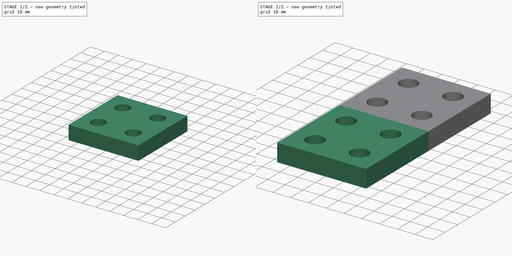
[diagram: build sequence overview — one tinted view per stage of 2, left to right]
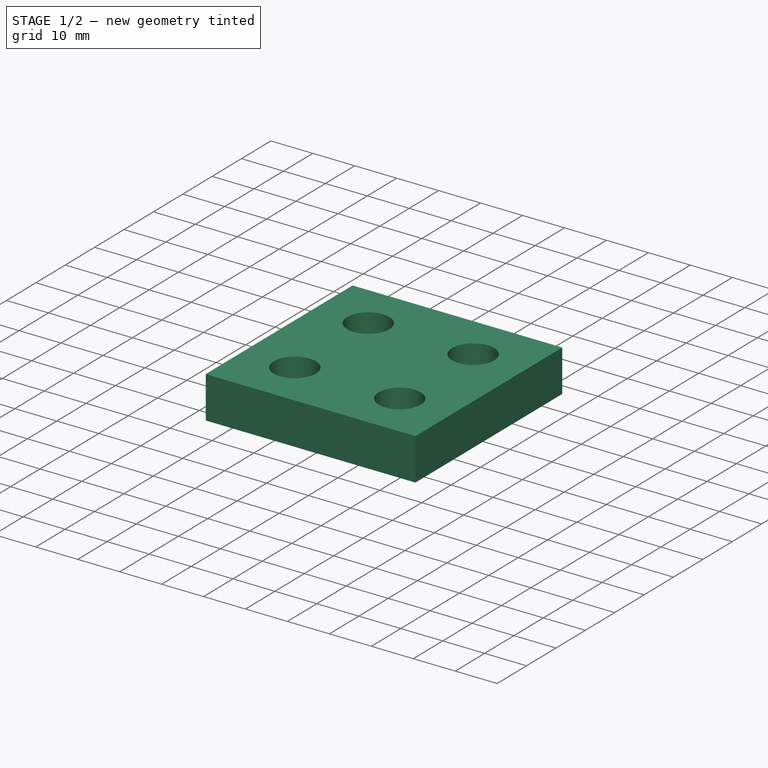
[diagram: stage 1 of 2 — iso view after this stage's code; geometry added in this stage tinted green]
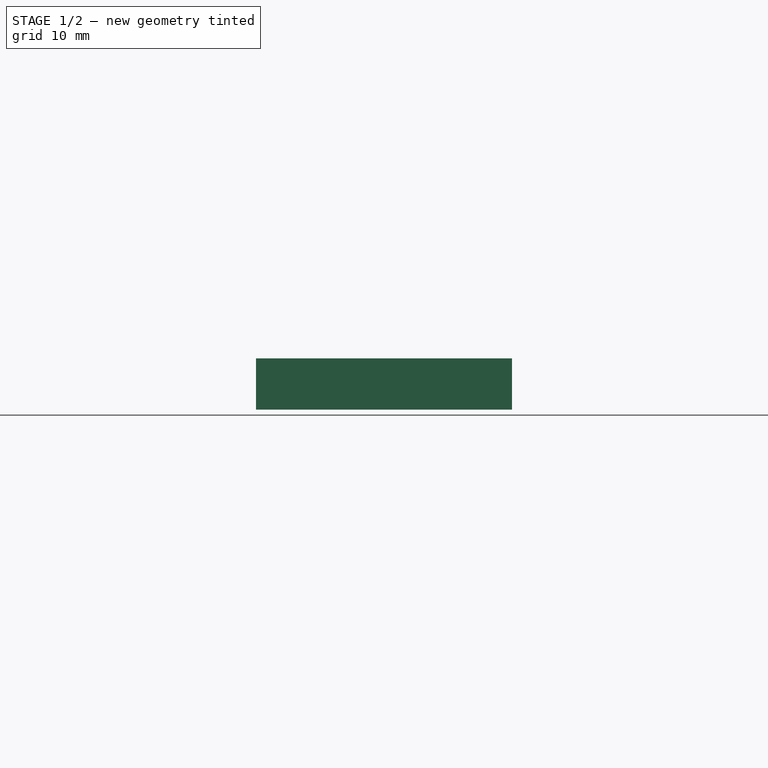
[diagram: stage 1 of 2 — front view after this stage's code; geometry added in this stage tinted green]
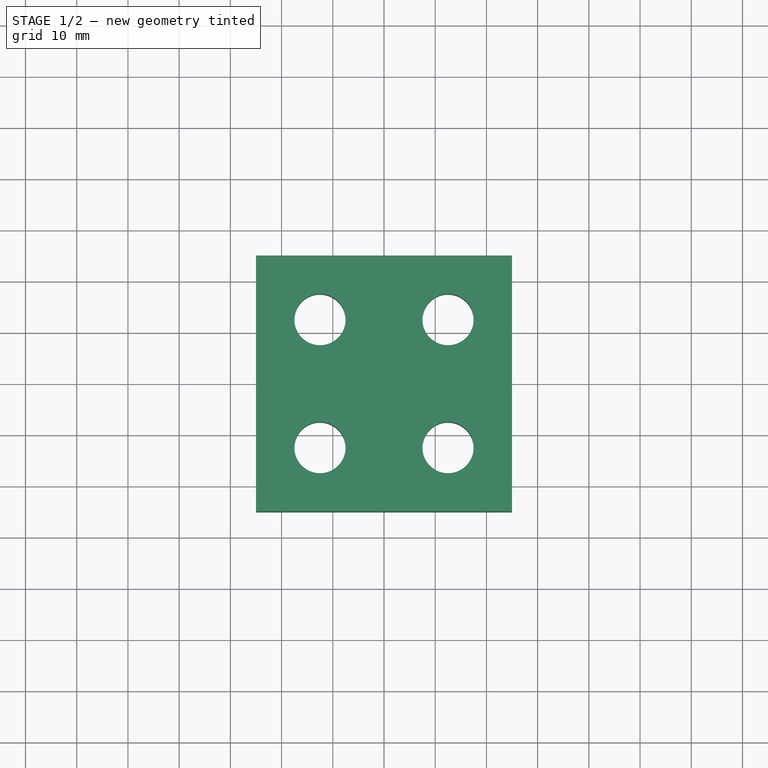
[diagram: stage 1 of 2 — top view after this stage's code; geometry added in this stage tinted green]
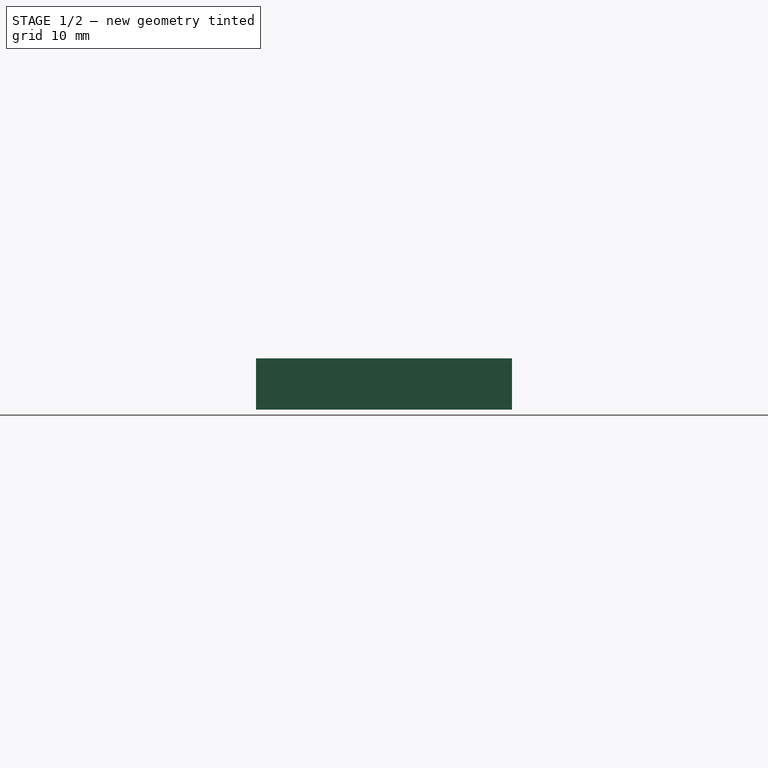
[diagram: stage 1 of 2 — right view after this stage's code; geometry added in this stage tinted green]
FCSTD DOCUMENT  (FreeCAD 0.19R23756 (Git))
Label: tutorial5
License: All rights reserved
LicenseURL: http://en.wikipedia.org/wiki/All_rights_reserved
objects: Sketcher::SketchObject×1, Spreadsheet::Sheet×1, PartDesign::Pad×1, PartDesign::Mirrored×1, PartDesign::Body×1, App::Part×1
note: 5 computed .brp shape members not serialized (recipe doc carries the construction recipe); baked Part::Feature solids carry a one-line shape summary decoded from their .brp

FEATURE [Sketcher::SketchObject] Sketch
  FullyConstrained = true
  MapMode = 5
  Support = -> [XY_Plane001]
  expr: Constraints[9] = <<Parameters>>.length
  expr: Constraints[8] = <<Parameters>>.width
  sketch-geometry (8):
    g0: LineSegment StartX=-25 StartY=25 StartZ=0 EndX=25 EndY=25 EndZ=0
    g1: LineSegment StartX=25 StartY=25 StartZ=0 EndX=25 EndY=-25 EndZ=0
    g2: LineSegment StartX=25 StartY=-25 StartZ=0 EndX=-25 EndY=-25 EndZ=0
    g3: LineSegment StartX=-25 StartY=-25 StartZ=0 EndX=-25 EndY=25 EndZ=0
    g4: Circle CenterX=12.5 CenterY=12.5 CenterZ=0 NormalX=0 NormalY=0 NormalZ=1 AngleXU=0 Radius=5
    g5: Circle CenterX=-12.5 CenterY=12.5 CenterZ=0 NormalX=0 NormalY=0 NormalZ=1 AngleXU=0 Radius=5
    g6: Circle CenterX=-12.5 CenterY=-12.5 CenterZ=0 NormalX=0 NormalY=0 NormalZ=1 AngleXU=0 Radius=5
    g7: Circle CenterX=12.5 CenterY=-12.5 CenterZ=0 NormalX=0 NormalY=0 NormalZ=1 AngleXU=0 Radius=5
  constraints (19):
    c: Coincident(g0,g1)
    c: Coincident(g1,g2)
    c: Coincident(g2,g3)
    c: Coincident(g3,g0)
    c: Horizontal(g0)
    c: Horizontal(g2)
    c: Vertical(g1)
    c: Vertical(g3)
    c: Distance(g0) = 50
    c: Distance(g1) = 50
    c: Symmetric(g2,g0,g-1)
    c: Radius(g4) = 5
    c: Symmetric(g0,g-1,g4)
    c: Radius(g5) = 5
    c: Symmetric(g0,g-1,g5)
    c: Radius(g7) = 5
    c: Radius(g6) = 5
    c: Symmetric(g-1,g2,g6)
    c: Symmetric(g-1,g1,g7)
FEATURE [Spreadsheet::Sheet] Spreadsheet  label="Parameters"
  cells = A1=Width; B1(width)=50; A2=Length; B2(length)=50
FEATURE [PartDesign::Pad] Pad
  Direction = (1,1,1)
  Length = 10
  Length2 = 100
  Profile = -> Sketch
  Type = 0
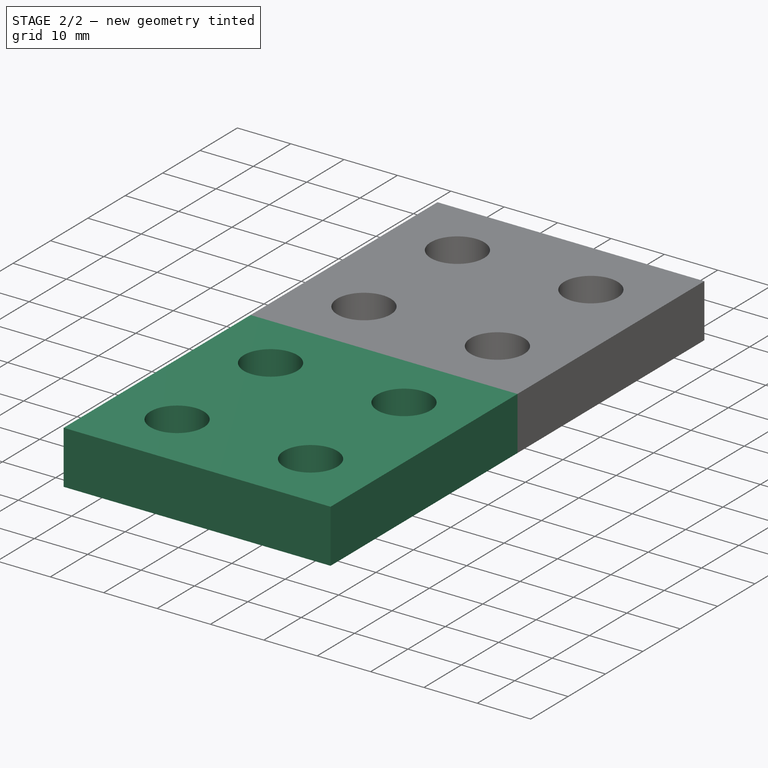
[diagram: stage 2 of 2 — iso view after this stage's code; geometry added in this stage tinted green]
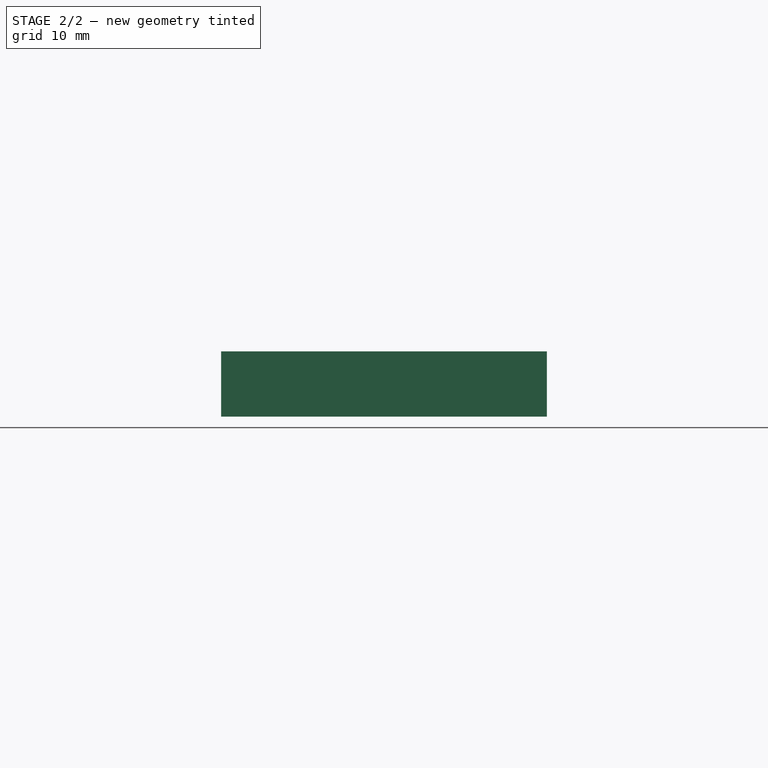
[diagram: stage 2 of 2 — front view after this stage's code; geometry added in this stage tinted green]
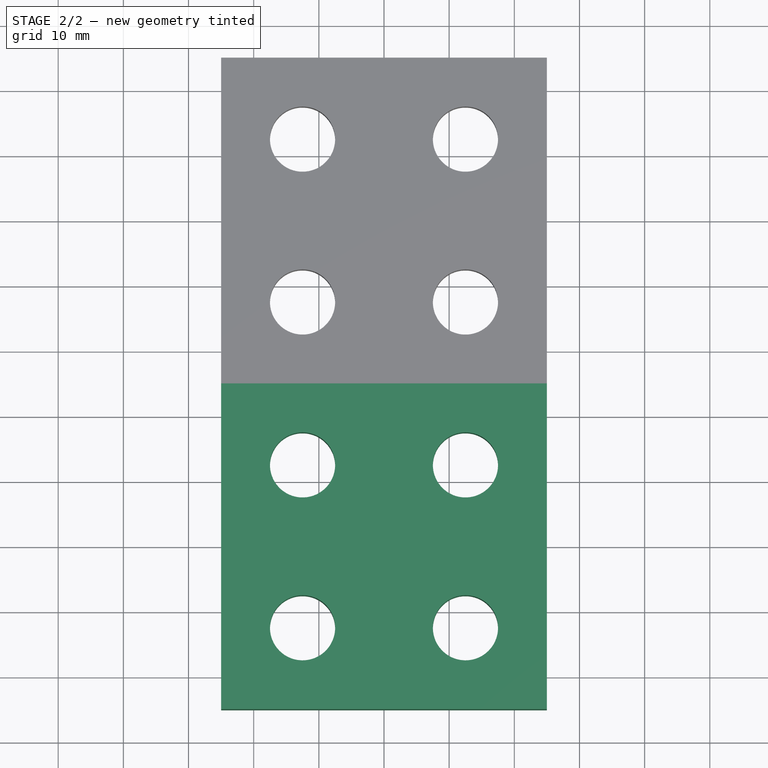
[diagram: stage 2 of 2 — top view after this stage's code; geometry added in this stage tinted green]
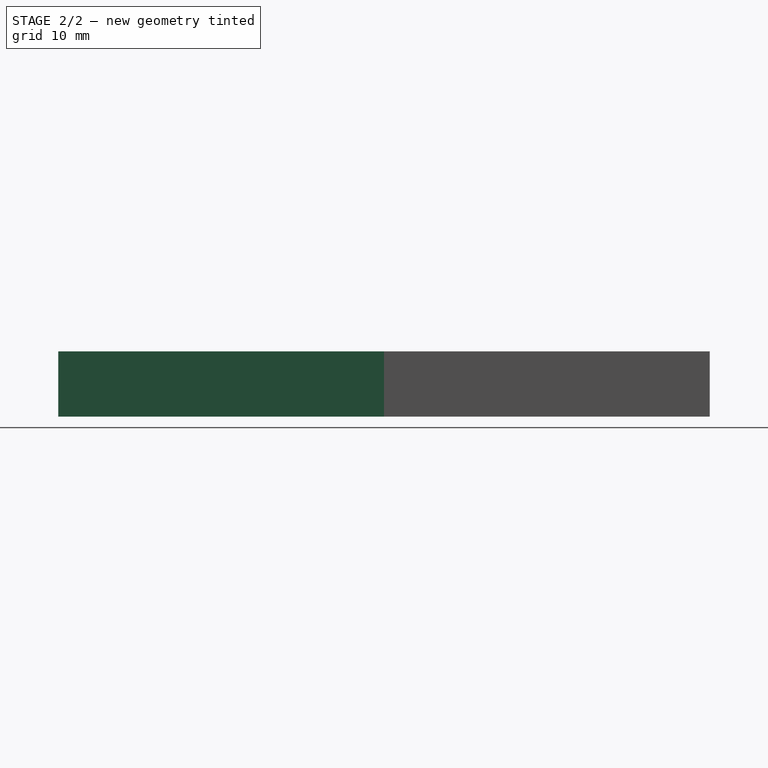
[diagram: stage 2 of 2 — right view after this stage's code; geometry added in this stage tinted green]
FEATURE [PartDesign::Mirrored] Mirrored
  BaseFeature = -> Pad
  MirrorPlane = -> Pad [Face3]
  Originals = -> [Pad]
FEATURE [PartDesign::Body] Body
  Group = -> [Sketch,Pad,Mirrored]
  Origin = -> Origin001
  Tip = -> Mirrored
FEATURE [App::Part] Part
  Group = -> [Body]
  Origin = -> Origin
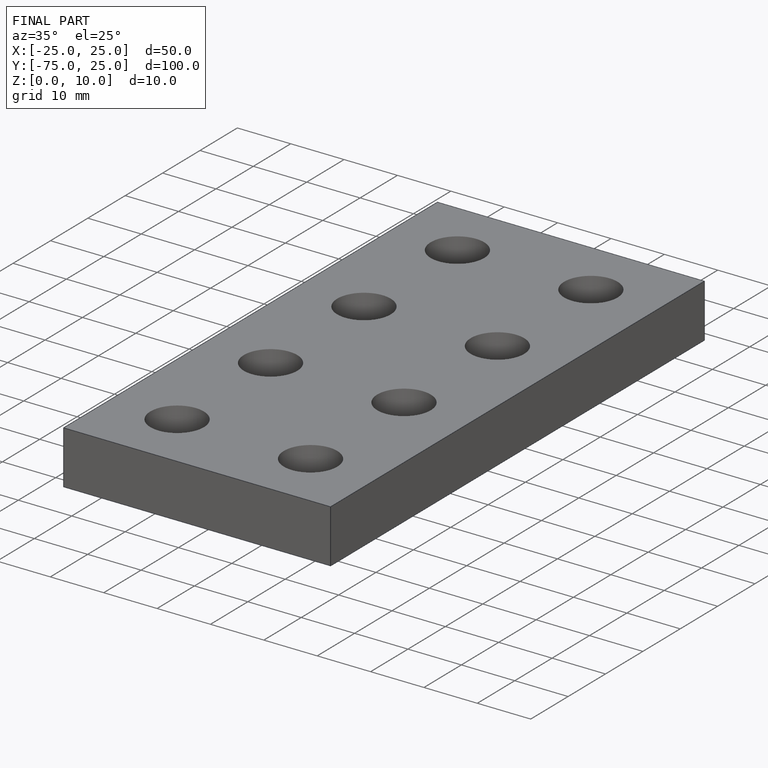
[diagram: finished part — iso view with bounding-box wireframe]
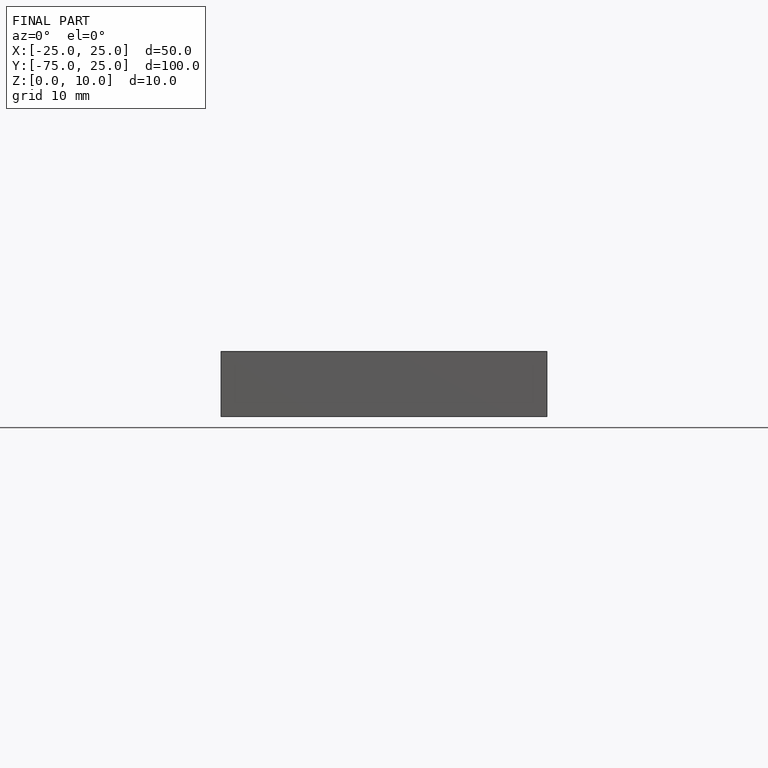
[diagram: finished part — front view with bounding-box wireframe]
